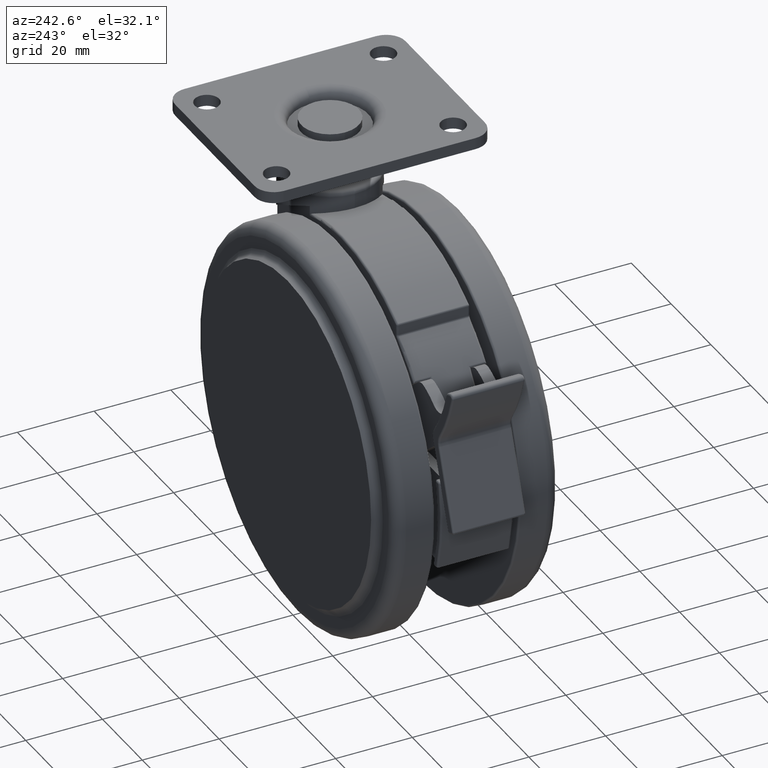
[diagram: clean part render]
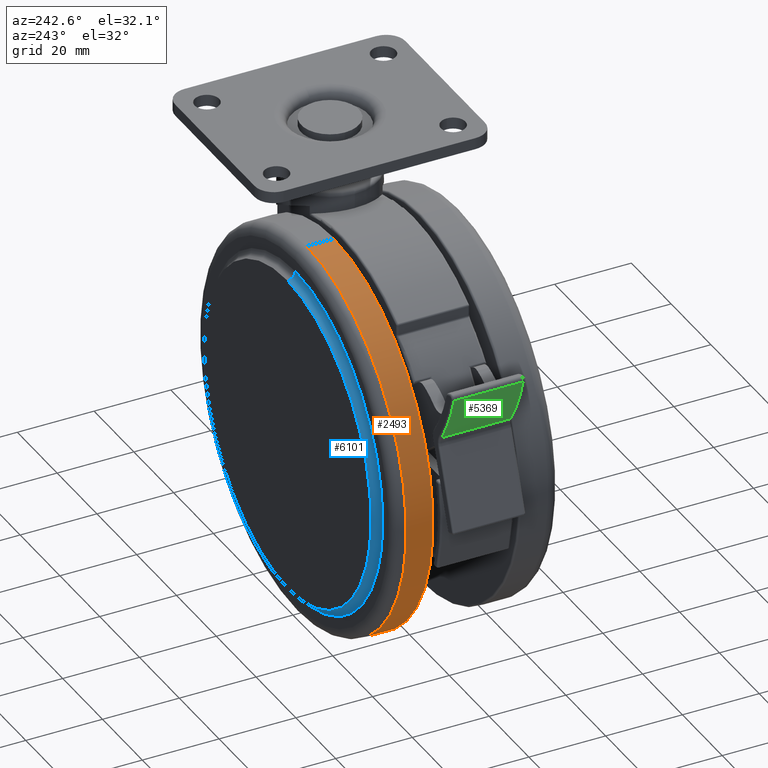
[diagram: same view with three faces highlighted in distinct colors, each labeled with its STEP entity id]
A machine part, auxiliary view with three faces highlighted in distinct colors.
Their STEP definitions:

[orange] entity #2493 — the highlighted cylindrical surface (partial cylindrical patch) has radius 50 mm, axis along (0, 1, 0).
#274 = DIRECTION ( 'NONE',  ( 0.0000000000000000000, 0.0000000000000000000, -1.000000000000000000 ) ) ;
#443 = CIRCLE ( 'NONE', #7124, 50.00000000000000700 ) ;
#482 = FACE_OUTER_BOUND ( 'NONE', #8509, .T. ) ;
#603 = ORIENTED_EDGE ( 'NONE', *, *, #4899, .T. ) ;
#770 = DIRECTION ( 'NONE',  ( 4.161225942742110400E-015, 1.000000000000000000, 0.0000000000000000000 ) ) ;
#1471 = VERTEX_POINT ( 'NONE', #5670 ) ;
#1991 = CARTESIAN_POINT ( 'NONE',  ( -24.00000000000000000, 11.50000000000025900, -53.50000000000000000 ) ) ;
#2230 = DIRECTION ( 'NONE',  ( 4.161225942742110400E-015, 1.000000000000000000, 0.0000000000000000000 ) ) ;
#2335 = EDGE_CURVE ( 'NONE', #8304, #7725, #3527, .T. ) ;
#2359 = AXIS2_PLACEMENT_3D ( 'NONE', #8083, #770, #3462 ) ;
#2412 = LINE ( 'NONE', #3315, #7512 ) ;
#2493 = ADVANCED_FACE ( 'NONE', ( #482 ), #5388, .T. ) ;
#2652 = DIRECTION ( 'NONE',  ( 0.0000000000000000000, 0.0000000000000000000, -1.000000000000000000 ) ) ;
#3315 = CARTESIAN_POINT ( 'NONE',  ( -24.00000000000000000, 9.986942262581088900E-014, -103.5000000000000100 ) ) ;
#3462 = DIRECTION ( 'NONE',  ( 0.0000000000000000000, 0.0000000000000000000, -1.000000000000000000 ) ) ;
#3527 = CIRCLE ( 'NONE', #6712, 50.00000000000000700 ) ;
#3943 = EDGE_CURVE ( 'NONE', #1471, #5104, #443, .T. ) ;
#4296 = DIRECTION ( 'NONE',  ( -4.161225942742110400E-015, -1.000000000000000000, 0.0000000000000000000 ) ) ;
#4881 = CARTESIAN_POINT ( 'NONE',  ( -24.00000000000000700, 9.986942262581091500E-014, -3.499999999999996000 ) ) ;
#4899 = EDGE_CURVE ( 'NONE', #1471, #8304, #8338, .T. ) ;
#5104 = VERTEX_POINT ( 'NONE', #6429 ) ;
#5388 = CYLINDRICAL_SURFACE ( 'NONE', #2359, 50.00000000000000700 ) ;
#5670 = CARTESIAN_POINT ( 'NONE',  ( -24.00000000000000700, 11.50000000000025900, -3.499999999999996000 ) ) ;
#5806 = ORIENTED_EDGE ( 'NONE', *, *, #2335, .T. ) ;
#6429 = CARTESIAN_POINT ( 'NONE',  ( -24.00000000000000000, 11.50000000000025900, -103.5000000000000100 ) ) ;
#6598 = DIRECTION ( 'NONE',  ( 4.161225942742110400E-015, 1.000000000000000000, 0.0000000000000000000 ) ) ;
#6626 = DIRECTION ( 'NONE',  ( -4.161225942742110400E-015, -1.000000000000000000, 0.0000000000000000000 ) ) ;
#6712 = AXIS2_PLACEMENT_3D ( 'NONE', #8255, #4296, #274 ) ;
#6793 = CARTESIAN_POINT ( 'NONE',  ( -24.00000000000000000, 18.50000000000000000, -103.5000000000000100 ) ) ;
#6797 = VECTOR ( 'NONE', #2230, 1000.000000000000000 ) ;
#7124 = AXIS2_PLACEMENT_3D ( 'NONE', #1991, #6626, #2652 ) ;
#7512 = VECTOR ( 'NONE', #6598, 1000.000000000000000 ) ;
#7725 = VERTEX_POINT ( 'NONE', #6793 ) ;
#8003 = ORIENTED_EDGE ( 'NONE', *, *, #3943, .F. ) ;
#8083 = CARTESIAN_POINT ( 'NONE',  ( -24.00000000000000000, 9.986942262581088900E-014, -53.50000000000000000 ) ) ;
#8255 = CARTESIAN_POINT ( 'NONE',  ( -24.00000000000000000, 18.50000000000000000, -53.50000000000000000 ) ) ;
#8304 = VERTEX_POINT ( 'NONE', #8451 ) ;
#8338 = LINE ( 'NONE', #4881, #6797 ) ;
#8385 = EDGE_CURVE ( 'NONE', #5104, #7725, #2412, .T. ) ;
#8451 = CARTESIAN_POINT ( 'NONE',  ( -24.00000000000000700, 18.50000000000000000, -3.499999999999997300 ) ) ;
#8509 = EDGE_LOOP ( 'NONE', ( #8003, #603, #5806, #8602 ) ) ;
#8602 = ORIENTED_EDGE ( 'NONE', *, *, #8385, .F. ) ;

[blue] entity #6101 — the highlighted toroidal blend (fillet) surface has major radius 44.1916 mm and minor (blend) radius 2.2 mm.
#90 = VERTEX_POINT ( 'NONE', #5034 ) ;
#722 = FACE_OUTER_BOUND ( 'NONE', #8604, .T. ) ;
#827 = DIRECTION ( 'NONE',  ( -4.161225942742110400E-015, -1.000000000000000000, 0.0000000000000000000 ) ) ;
#1079 = AXIS2_PLACEMENT_3D ( 'NONE', #5154, #1171, #5828 ) ;
#1080 = AXIS2_PLACEMENT_3D ( 'NONE', #7542, #3582, #8203 ) ;
#1171 = DIRECTION ( 'NONE',  ( -1.000000000000000000, 4.161225942742110400E-015, -1.224646799147353200E-016 ) ) ;
#1251 = ORIENTED_EDGE ( 'NONE', *, *, #8076, .F. ) ;
#1312 = VERTEX_POINT ( 'NONE', #1663 ) ;
#1617 = CARTESIAN_POINT ( 'NONE',  ( -24.00000000000000700, 21.50000000000000000, -97.50000000000116500 ) ) ;
#1663 = CARTESIAN_POINT ( 'NONE',  ( -24.00000000000001400, 21.50000000000000000, -9.499999999998824100 ) ) ;
#2496 = TOROIDAL_SURFACE ( 'NONE', #4329, 44.19163752878139900, 2.200000000000000200 ) ;
#2582 = DIRECTION ( 'NONE',  ( 4.161225942742110400E-015, 1.000000000000000000, 0.0000000000000000000 ) ) ;
#2974 = DIRECTION ( 'NONE',  ( -4.161225942742110400E-015, -1.000000000000000000, 0.0000000000000000000 ) ) ;
#3259 = DIRECTION ( 'NONE',  ( 0.0000000000000000000, 0.0000000000000000000, -1.000000000000000000 ) ) ;
#3582 = DIRECTION ( 'NONE',  ( 1.000000000000000000, -4.161225942742110400E-015, 0.0000000000000000000 ) ) ;
#3598 = EDGE_CURVE ( 'NONE', #5333, #7018, #4900, .T. ) ;
#3795 = CIRCLE ( 'NONE', #1079, 2.200000000000000600 ) ;
#4329 = AXIS2_PLACEMENT_3D ( 'NONE', #6568, #2582, #3259 ) ;
#4590 = ORIENTED_EDGE ( 'NONE', *, *, #3598, .T. ) ;
#4618 = AXIS2_PLACEMENT_3D ( 'NONE', #6963, #2974, #7631 ) ;
#4822 = CARTESIAN_POINT ( 'NONE',  ( -24.00000000000000000, 23.50000000000000000, -53.50000000000000000 ) ) ;
#4900 = CIRCLE ( 'NONE', #1080, 2.200000000000000600 ) ;
#5034 = CARTESIAN_POINT ( 'NONE',  ( -24.00000000000001100, 23.50000000000000000, -11.49999999999999600 ) ) ;
#5148 = AXIS2_PLACEMENT_3D ( 'NONE', #4822, #827, #5481 ) ;
#5154 = CARTESIAN_POINT ( 'NONE',  ( -24.00000000000000700, 23.69163752878140300, -9.308362471218599100 ) ) ;
#5333 = VERTEX_POINT ( 'NONE', #6573 ) ;
#5481 = DIRECTION ( 'NONE',  ( 0.0000000000000000000, 0.0000000000000000000, -1.000000000000000000 ) ) ;
#5828 = DIRECTION ( 'NONE',  ( -4.731064025391290900E-015, -1.000000000000000000, 0.0000000000000000000 ) ) ;
#5851 = CIRCLE ( 'NONE', #4618, 44.00000000000104400 ) ;
#6101 = ADVANCED_FACE ( 'NONE', ( #722 ), #2496, .F. ) ;
#6129 = ORIENTED_EDGE ( 'NONE', *, *, #7355, .F. ) ;
#6568 = CARTESIAN_POINT ( 'NONE',  ( -24.00000000000000000, 23.69163752878140300, -53.50000000000000000 ) ) ;
#6573 = CARTESIAN_POINT ( 'NONE',  ( -24.00000000000000000, 23.50000000000000000, -95.50000000000000000 ) ) ;
#6867 = EDGE_CURVE ( 'NONE', #90, #5333, #8598, .T. ) ;
#6963 = CARTESIAN_POINT ( 'NONE',  ( -24.00000000000000000, 21.50000000000000000, -53.50000000000000000 ) ) ;
#7018 = VERTEX_POINT ( 'NONE', #1617 ) ;
#7355 = EDGE_CURVE ( 'NONE', #90, #1312, #3795, .T. ) ;
#7542 = CARTESIAN_POINT ( 'NONE',  ( -24.00000000000000000, 23.69163752878140300, -97.69163752878139900 ) ) ;
#7631 = DIRECTION ( 'NONE',  ( 0.0000000000000000000, 0.0000000000000000000, -1.000000000000000000 ) ) ;
#7896 = ORIENTED_EDGE ( 'NONE', *, *, #6867, .T. ) ;
#8076 = EDGE_CURVE ( 'NONE', #1312, #7018, #5851, .T. ) ;
#8203 = DIRECTION ( 'NONE',  ( 4.731064025391290900E-015, 1.000000000000000000, 0.0000000000000000000 ) ) ;
#8598 = CIRCLE ( 'NONE', #5148, 42.00000000000000000 ) ;
#8604 = EDGE_LOOP ( 'NONE', ( #6129, #7896, #4590, #1251 ) ) ;

[green] entity #5369 — the highlighted cylindrical surface (partial cylindrical patch) has radius 50.5 mm, axis along (0, -1, 0).
#203 = EDGE_CURVE ( 'NONE', #7810, #1726, #7389, .T. ) ;
#450 = AXIS2_PLACEMENT_3D ( 'NONE', #1820, #6469, #2492 ) ;
#511 = AXIS2_PLACEMENT_3D ( 'NONE', #8379, #8225, #8335 ) ;
#672 = VERTEX_POINT ( 'NONE', #4540 ) ;
#777 = CARTESIAN_POINT ( 'NONE',  ( -79.74220196484520800, 990.5000000000000000, -17.46433785084695200 ) ) ;
#790 = AXIS2_PLACEMENT_3D ( 'NONE', #3957, #1306, #5958 ) ;
#963 = DIRECTION ( 'NONE',  ( 0.0000000000000000000, -1.000000000000000000, 0.0000000000000000000 ) ) ;
#1306 = DIRECTION ( 'NONE',  ( 0.0000000000000000000, -1.000000000000000000, 0.0000000000000000000 ) ) ;
#1439 = EDGE_CURVE ( 'NONE', #672, #7810, #3524, .T. ) ;
#1453 = DIRECTION ( 'NONE',  ( -0.0000000000000000000, 1.000000000000000000, -0.0000000000000000000 ) ) ;
#1483 = FACE_OUTER_BOUND ( 'NONE', #5087, .T. ) ;
#1726 = VERTEX_POINT ( 'NONE', #8465 ) ;
#1820 = CARTESIAN_POINT ( 'NONE',  ( -31.28781473974764900, -8.999999999999788600, -3.236816680934794900 ) ) ;
#2492 = DIRECTION ( 'NONE',  ( 0.0000000000000000000, 0.0000000000000000000, 1.000000000000000000 ) ) ;
#3033 = CIRCLE ( 'NONE', #450, 50.50000000000000000 ) ;
#3357 = ORIENTED_EDGE ( 'NONE', *, *, #1439, .T. ) ;
#3448 = VECTOR ( 'NONE', #1453, 1000.000000000000000 ) ;
#3524 = CIRCLE ( 'NONE', #511, 50.50000000000000000 ) ;
#3577 = ORIENTED_EDGE ( 'NONE', *, *, #203, .T. ) ;
#3948 = VERTEX_POINT ( 'NONE', #5961 ) ;
#3957 = CARTESIAN_POINT ( 'NONE',  ( -31.28781473974764900, 990.5000000000000000, -3.236816680934794900 ) ) ;
#4406 = ORIENTED_EDGE ( 'NONE', *, *, #6307, .T. ) ;
#4540 = CARTESIAN_POINT ( 'NONE',  ( -79.74220196484520800, 8.999999999999900500, -17.46433785084695200 ) ) ;
#5087 = EDGE_LOOP ( 'NONE', ( #4406, #3357, #3577, #8431 ) ) ;
#5369 = ADVANCED_FACE ( 'NONE', ( #1483 ), #6569, .T. ) ;
#5623 = VECTOR ( 'NONE', #963, 1000.000000000000000 ) ;
#5843 = EDGE_CURVE ( 'NONE', #1726, #3948, #3033, .T. ) ;
#5958 = DIRECTION ( 'NONE',  ( 0.0000000000000000000, 0.0000000000000000000, -1.000000000000000000 ) ) ;
#5961 = CARTESIAN_POINT ( 'NONE',  ( -79.74220196484520800, -8.999999999999788600, -17.46433785084695200 ) ) ;
#6307 = EDGE_CURVE ( 'NONE', #3948, #672, #7168, .T. ) ;
#6409 = CARTESIAN_POINT ( 'NONE',  ( -73.46611147315499600, 990.5000000000000000, -31.00804792243064900 ) ) ;
#6469 = DIRECTION ( 'NONE',  ( 0.0000000000000000000, 1.000000000000000000, 0.0000000000000000000 ) ) ;
#6569 = CYLINDRICAL_SURFACE ( 'NONE', #790, 50.50000000000000000 ) ;
#7168 = LINE ( 'NONE', #777, #3448 ) ;
#7278 = CARTESIAN_POINT ( 'NONE',  ( -73.46611147315499600, 8.999999999999900500, -31.00804792243064900 ) ) ;
#7389 = LINE ( 'NONE', #6409, #5623 ) ;
#7810 = VERTEX_POINT ( 'NONE', #7278 ) ;
#8225 = DIRECTION ( 'NONE',  ( -0.0000000000000000000, -1.000000000000000000, -0.0000000000000000000 ) ) ;
#8335 = DIRECTION ( 'NONE',  ( -8.244230380879875700E-016, 0.0000000000000000000, 1.000000000000000000 ) ) ;
#8379 = CARTESIAN_POINT ( 'NONE',  ( -31.28781473974764900, 8.999999999999900500, -3.236816680934794900 ) ) ;
#8431 = ORIENTED_EDGE ( 'NONE', *, *, #5843, .T. ) ;
#8465 = CARTESIAN_POINT ( 'NONE',  ( -73.46611147315499600, -8.999999999999788600, -31.00804792243064900 ) ) ;